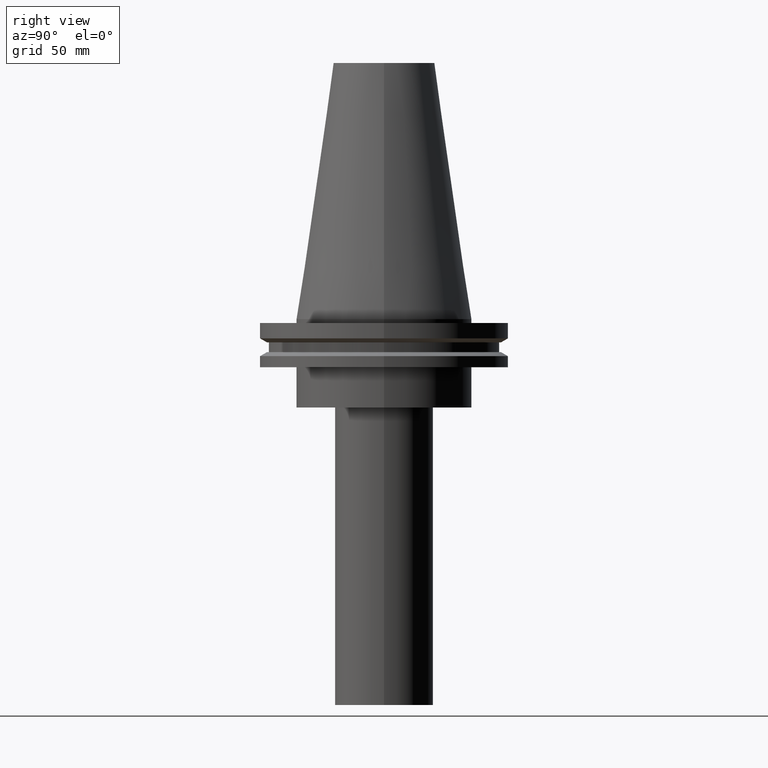
[diagram: clean part render]
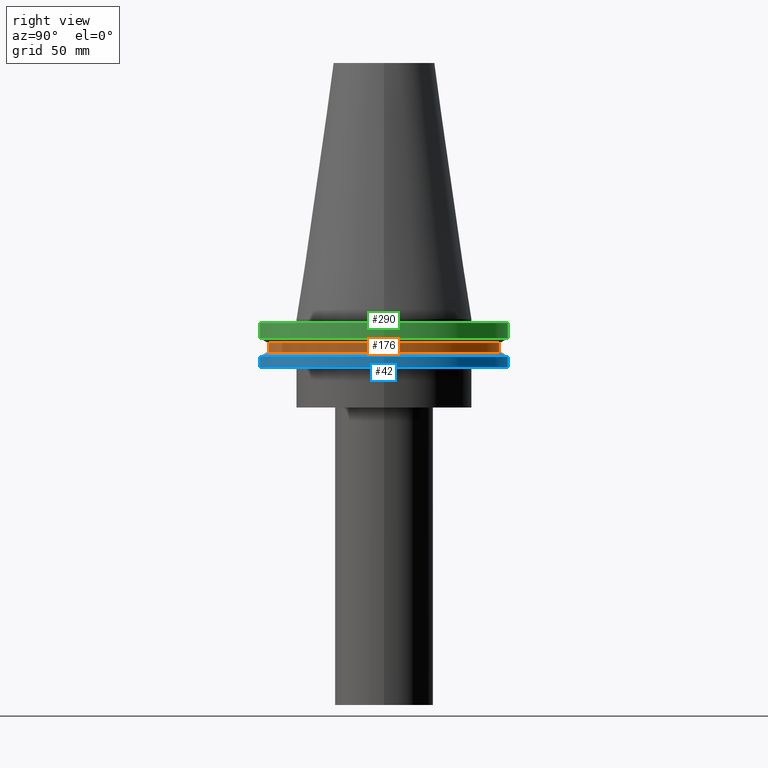
[diagram: same view with three faces highlighted in distinct colors, each labeled with its STEP entity id]
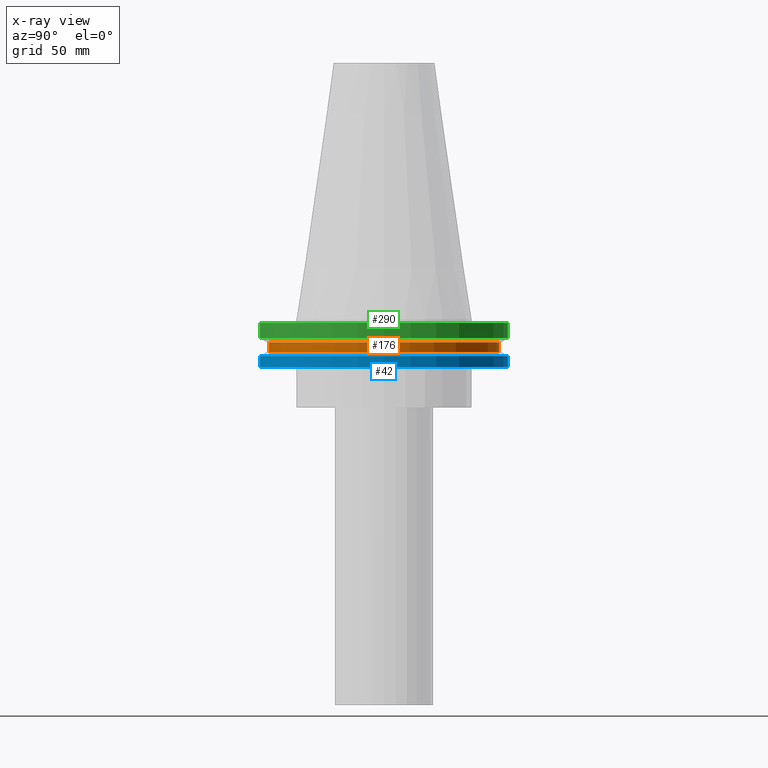
[diagram: x-ray of the same camera — body ghosted, the three highlighted faces saturated]
A machine part, right view with three faces highlighted in distinct colors.
The next image is the same camera in x-ray (body ghosted, the three faces saturated) — at least one of them is partly hidden behind the body in this view.
Their STEP definitions:

[orange] entity #176 — the highlighted cylindrical surface (bore or boss wall) has radius 45.645 mm, axis along (-0, -0, 1).
#5 = AXIS2_PLACEMENT_3D ( 'NONE', #389, #117, #152 ) ;
#22 = CYLINDRICAL_SURFACE ( 'NONE', #72, 45.64500000000000313 ) ;
#27 = FACE_OUTER_BOUND ( 'NONE', #282, .T. ) ;
#41 = CARTESIAN_POINT ( 'NONE',  ( 0.000000000000000000, 0.000000000000000000, -9.204999999999991189 ) ) ;
#46 = VERTEX_POINT ( 'NONE', #386 ) ;
#72 = AXIS2_PLACEMENT_3D ( 'NONE', #144, #267, #307 ) ;
#88 = ORIENTED_EDGE ( 'NONE', *, *, #221, .T. ) ;
#99 = AXIS2_PLACEMENT_3D ( 'NONE', #41, #291, #343 ) ;
#117 = DIRECTION ( 'NONE',  ( -0.000000000000000000, -0.000000000000000000, 1.000000000000000000 ) ) ;
#144 = CARTESIAN_POINT ( 'NONE',  ( 0.000000000000000000, 0.000000000000000000, 101.5999999999999943 ) ) ;
#145 = CARTESIAN_POINT ( 'NONE',  ( 45.64500000000000313, 0.000000000000000000, -9.204999999999991189 ) ) ;
#152 = DIRECTION ( 'NONE',  ( 1.000000000000000000, 0.000000000000000000, 0.000000000000000000 ) ) ;
#174 = VERTEX_POINT ( 'NONE', #145 ) ;
#176 = ADVANCED_FACE ( 'NONE', ( #27, #305 ), #22, .T. ) ;
#201 = CIRCLE ( 'NONE', #5, 45.64500000000000313 ) ;
#221 = EDGE_CURVE ( 'NONE', #46, #46, #201, .T. ) ;
#267 = DIRECTION ( 'NONE',  ( -0.000000000000000000, -0.000000000000000000, 1.000000000000000000 ) ) ;
#271 = EDGE_CURVE ( 'NONE', #174, #174, #326, .T. ) ;
#282 = EDGE_LOOP ( 'NONE', ( #284 ) ) ;
#284 = ORIENTED_EDGE ( 'NONE', *, *, #271, .F. ) ;
#291 = DIRECTION ( 'NONE',  ( -0.000000000000000000, -0.000000000000000000, 1.000000000000000000 ) ) ;
#305 = FACE_OUTER_BOUND ( 'NONE', #337, .T. ) ;
#307 = DIRECTION ( 'NONE',  ( 1.000000000000000000, 0.000000000000000000, 0.000000000000000000 ) ) ;
#326 = CIRCLE ( 'NONE', #99, 45.64500000000000313 ) ;
#337 = EDGE_LOOP ( 'NONE', ( #88 ) ) ;
#343 = DIRECTION ( 'NONE',  ( 1.000000000000000000, 0.000000000000000000, 0.000000000000000000 ) ) ;
#386 = CARTESIAN_POINT ( 'NONE',  ( 45.64500000000000313, 0.000000000000000000, -13.05499999999999794 ) ) ;
#389 = CARTESIAN_POINT ( 'NONE',  ( 0.000000000000000000, 0.000000000000000000, -13.05499999999999794 ) ) ;

[blue] entity #42 — the highlighted cylindrical surface (bore or boss wall) has radius 49.215 mm, axis along (-0, -0, 1).
#40 = FACE_OUTER_BOUND ( 'NONE', #240, .T. ) ;
#42 = ADVANCED_FACE ( 'NONE', ( #319, #40 ), #280, .T. ) ;
#51 = AXIS2_PLACEMENT_3D ( 'NONE', #101, #171, #100 ) ;
#56 = ORIENTED_EDGE ( 'NONE', *, *, #327, .T. ) ;
#73 = EDGE_CURVE ( 'NONE', #270, #270, #136, .T. ) ;
#81 = CARTESIAN_POINT ( 'NONE',  ( 49.21499999999998920, 0.000000000000000000, -14.65761014474876944 ) ) ;
#93 = ORIENTED_EDGE ( 'NONE', *, *, #73, .F. ) ;
#100 = DIRECTION ( 'NONE',  ( 1.000000000000000000, 0.000000000000000000, 0.000000000000000000 ) ) ;
#101 = CARTESIAN_POINT ( 'NONE',  ( 0.000000000000000000, 0.000000000000000000, 101.5999999999999943 ) ) ;
#107 = CIRCLE ( 'NONE', #225, 49.21499999999998920 ) ;
#136 = CIRCLE ( 'NONE', #209, 49.21499999999998920 ) ;
#171 = DIRECTION ( 'NONE',  ( -0.000000000000000000, -0.000000000000000000, 1.000000000000000000 ) ) ;
#172 = DIRECTION ( 'NONE',  ( 1.000000000000000000, 0.000000000000000000, 0.000000000000000000 ) ) ;
#198 = VERTEX_POINT ( 'NONE', #234 ) ;
#209 = AXIS2_PLACEMENT_3D ( 'NONE', #377, #228, #384 ) ;
#225 = AXIS2_PLACEMENT_3D ( 'NONE', #259, #324, #172 ) ;
#228 = DIRECTION ( 'NONE',  ( -0.000000000000000000, -0.000000000000000000, 1.000000000000000000 ) ) ;
#234 = CARTESIAN_POINT ( 'NONE',  ( 49.21499999999998920, 0.000000000000000000, -19.04999999999999716 ) ) ;
#240 = EDGE_LOOP ( 'NONE', ( #56 ) ) ;
#250 = EDGE_LOOP ( 'NONE', ( #93 ) ) ;
#259 = CARTESIAN_POINT ( 'NONE',  ( 0.000000000000000000, 0.000000000000000000, -19.04999999999999716 ) ) ;
#270 = VERTEX_POINT ( 'NONE', #81 ) ;
#280 = CYLINDRICAL_SURFACE ( 'NONE', #51, 49.21499999999998920 ) ;
#319 = FACE_OUTER_BOUND ( 'NONE', #250, .T. ) ;
#324 = DIRECTION ( 'NONE',  ( -0.000000000000000000, -0.000000000000000000, 1.000000000000000000 ) ) ;
#327 = EDGE_CURVE ( 'NONE', #198, #198, #107, .T. ) ;
#377 = CARTESIAN_POINT ( 'NONE',  ( 0.000000000000000000, 0.000000000000000000, -14.65761014474876944 ) ) ;
#384 = DIRECTION ( 'NONE',  ( 1.000000000000000000, 0.000000000000000000, 0.000000000000000000 ) ) ;

[green] entity #290 — the highlighted cylindrical surface (bore or boss wall) has radius 49.215 mm, axis along (-0, -0, 1).
#18 = DIRECTION ( 'NONE',  ( 1.000000000000000000, 0.000000000000000000, 0.000000000000000000 ) ) ;
#24 = VERTEX_POINT ( 'NONE', #43 ) ;
#43 = CARTESIAN_POINT ( 'NONE',  ( 49.21500000000000341, 0.000000000000000000, -7.602389855251287187 ) ) ;
#64 = FACE_OUTER_BOUND ( 'NONE', #364, .T. ) ;
#65 = EDGE_CURVE ( 'NONE', #24, #24, #231, .T. ) ;
#68 = DIRECTION ( 'NONE',  ( 1.000000000000000000, 0.000000000000000000, 0.000000000000000000 ) ) ;
#113 = CARTESIAN_POINT ( 'NONE',  ( 49.21499999999999631, 0.000000000000000000, -1.499999999999987566 ) ) ;
#127 = CYLINDRICAL_SURFACE ( 'NONE', #219, 49.21499999999999631 ) ;
#133 = FACE_OUTER_BOUND ( 'NONE', #314, .T. ) ;
#142 = CARTESIAN_POINT ( 'NONE',  ( 0.000000000000000000, 0.000000000000000000, -7.602389855251287187 ) ) ;
#147 = DIRECTION ( 'NONE',  ( 1.000000000000000000, 0.000000000000000000, 0.000000000000000000 ) ) ;
#165 = DIRECTION ( 'NONE',  ( -0.000000000000000000, -0.000000000000000000, 1.000000000000000000 ) ) ;
#188 = ORIENTED_EDGE ( 'NONE', *, *, #370, .F. ) ;
#219 = AXIS2_PLACEMENT_3D ( 'NONE', #341, #264, #18 ) ;
#231 = CIRCLE ( 'NONE', #362, 49.21500000000000341 ) ;
#245 = CIRCLE ( 'NONE', #302, 49.21499999999999631 ) ;
#254 = ORIENTED_EDGE ( 'NONE', *, *, #65, .T. ) ;
#264 = DIRECTION ( 'NONE',  ( -0.000000000000000000, -0.000000000000000000, 1.000000000000000000 ) ) ;
#290 = ADVANCED_FACE ( 'NONE', ( #133, #64 ), #127, .T. ) ;
#298 = DIRECTION ( 'NONE',  ( -0.000000000000000000, -0.000000000000000000, 1.000000000000000000 ) ) ;
#302 = AXIS2_PLACEMENT_3D ( 'NONE', #381, #298, #147 ) ;
#314 = EDGE_LOOP ( 'NONE', ( #188 ) ) ;
#341 = CARTESIAN_POINT ( 'NONE',  ( 0.000000000000000000, 0.000000000000000000, 101.5999999999999943 ) ) ;
#362 = AXIS2_PLACEMENT_3D ( 'NONE', #142, #165, #68 ) ;
#364 = EDGE_LOOP ( 'NONE', ( #254 ) ) ;
#370 = EDGE_CURVE ( 'NONE', #388, #388, #245, .T. ) ;
#381 = CARTESIAN_POINT ( 'NONE',  ( 0.000000000000000000, 0.000000000000000000, -1.499999999999987566 ) ) ;
#388 = VERTEX_POINT ( 'NONE', #113 ) ;